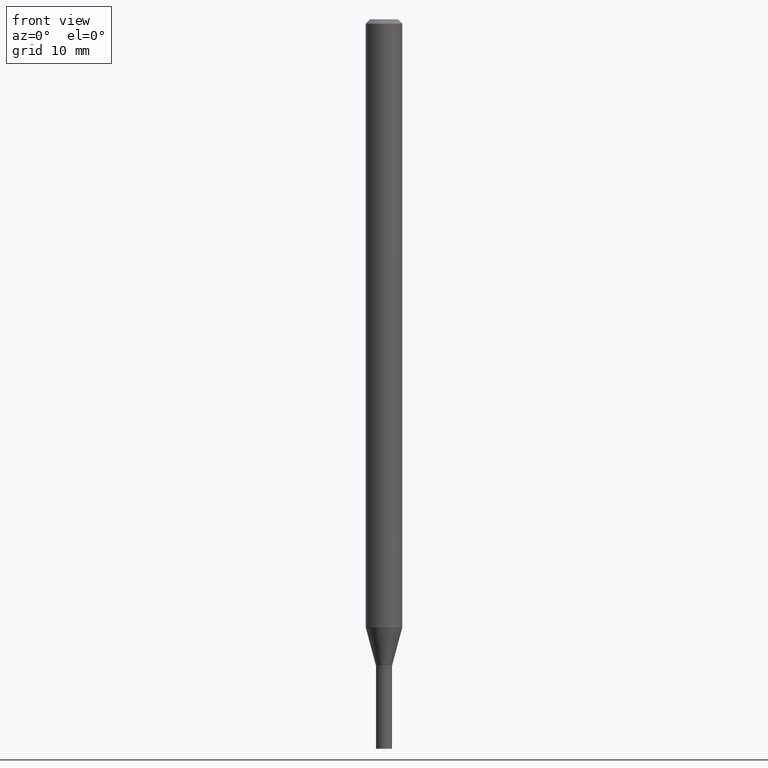
[diagram: clean part render]
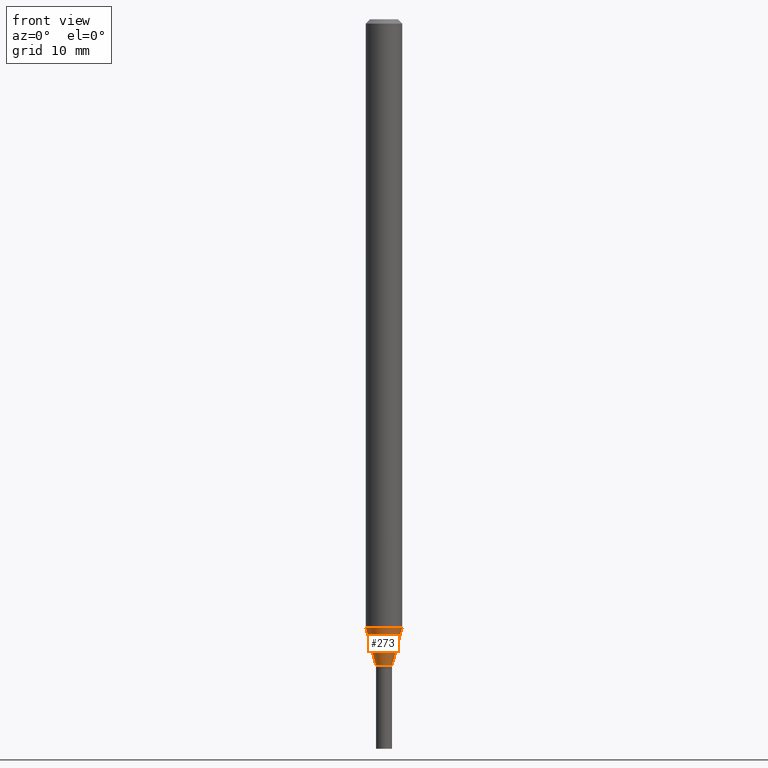
[diagram: same view with one face highlighted and labeled with its STEP entity id]
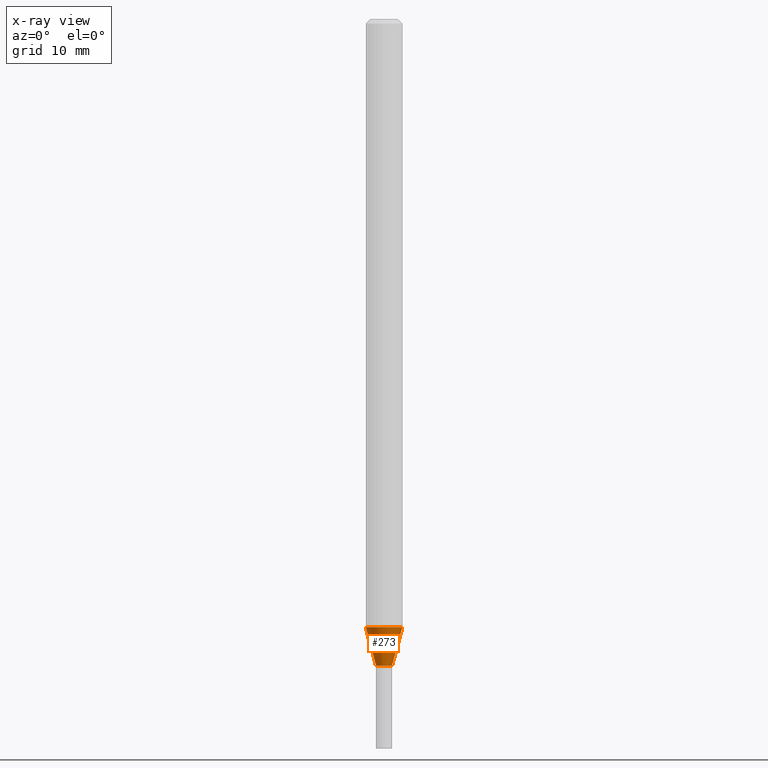
[diagram: x-ray of the same camera — body ghosted, the highlighted face saturated]
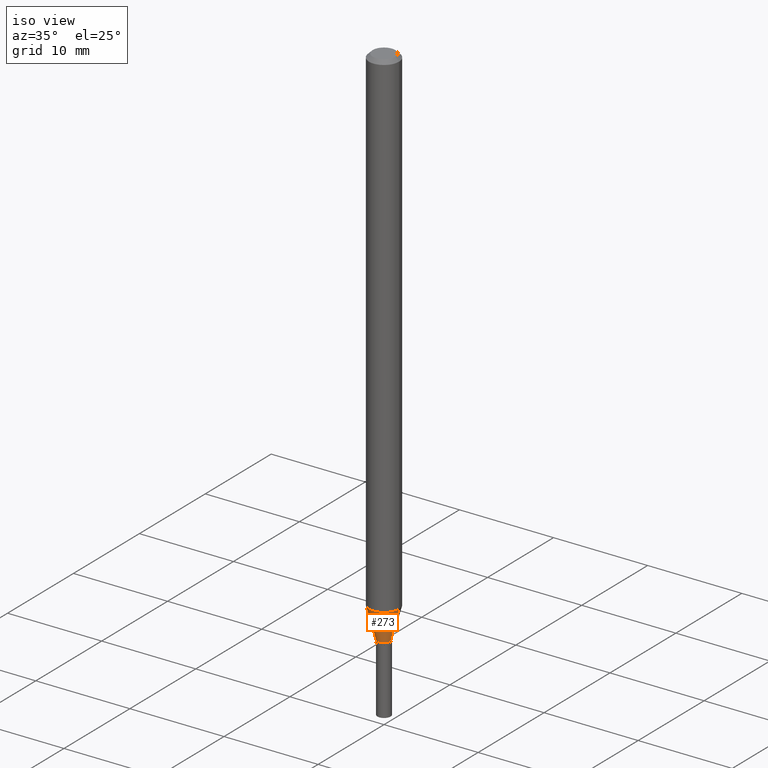
[diagram: same view with one face highlighted and labeled with its STEP entity id]
A machine part, front view. The second image highlights one B-rep face of the part: STEP entity #273.
The next image is the same camera in x-ray: the body ghosted, the highlighted face saturated — about 0% of this face is hidden behind the body in this view.
A second angle (iso view) of the same face is appended — the face is thin or edge-on in the first view.
In plain terms, the highlighted conical surface has half-angle 15 deg.
Its self-contained STEP definition (entity closure, byte-faithful):
#4 = EDGE_LOOP ( 'NONE', ( #402, #162, #17, #22 ) ) ;
#17 = ORIENTED_EDGE ( 'NONE', *, *, #442, .T. ) ;
#22 = ORIENTED_EDGE ( 'NONE', *, *, #213, .F. ) ;
#40 = VERTEX_POINT ( 'NONE', #301 ) ;
#55 = CONICAL_SURFACE ( 'NONE', #309, 0.02750000000000019790, 0.2617993877991500740 ) ;
#68 = VERTEX_POINT ( 'NONE', #258 ) ;
#78 = VECTOR ( 'NONE', #235, 39.37007874015747433 ) ;
#82 = DIRECTION ( 'NONE',  ( -0.2588190451025213501, 5.211531920934551042E-15, 0.9659258262890682012 ) ) ;
#95 = CARTESIAN_POINT ( 'NONE',  ( 5.416713405700078055E-29, -7.733631165537568465E-15, -2.215000000000000302 ) ) ;
#114 = DIRECTION ( 'NONE',  ( -2.445468806185136597E-29, 3.491481338843145583E-15, 1.000000000000000000 ) ) ;
#134 = CARTESIAN_POINT ( 'NONE',  ( 5.097281921544810220E-29, -7.277567664279129507E-15, -2.084378221735090797 ) ) ;
#136 = CIRCLE ( 'NONE', #241, 0.02750000000000019790 ) ;
#144 = FACE_OUTER_BOUND ( 'NONE', #4, .T. ) ;
#162 = ORIENTED_EDGE ( 'NONE', *, *, #359, .T. ) ;
#174 = CARTESIAN_POINT ( 'NONE',  ( 0.06250000000000000000, -7.714002831634521177E-15, -2.084378221735090797 ) ) ;
#202 = AXIS2_PLACEMENT_3D ( 'NONE', #134, #391, #211 ) ;
#211 = DIRECTION ( 'NONE',  ( 1.000000000000000000, -6.982962677686262766E-15, 0.000000000000000000 ) ) ;
#213 = EDGE_CURVE ( 'NONE', #40, #223, #251, .T. ) ;
#223 = VERTEX_POINT ( 'NONE', #174 ) ;
#235 = DIRECTION ( 'NONE',  ( 0.2588190451025213501, 1.565188264969621968E-15, 0.9659258262890682012 ) ) ;
#241 = AXIS2_PLACEMENT_3D ( 'NONE', #95, #457, #291 ) ;
#251 = CIRCLE ( 'NONE', #202, 0.06250000000000000000 ) ;
#258 = CARTESIAN_POINT ( 'NONE',  ( -0.02750000000000019790, -7.185855183816302830E-15, -2.215000000000000302 ) ) ;
#273 = ADVANCED_FACE ( 'NONE', ( #144 ), #55, .T. ) ;
#291 = DIRECTION ( 'NONE',  ( 1.000000000000000000, -6.982962677686265133E-15, 0.000000000000000000 ) ) ;
#301 = CARTESIAN_POINT ( 'NONE',  ( -0.06250000000000000000, -6.833478454429066891E-15, -2.084378221735090797 ) ) ;
#304 = CARTESIAN_POINT ( 'NONE',  ( 0.02750000000000019790, -7.925662639173941747E-15, -2.215000000000000302 ) ) ;
#309 = AXIS2_PLACEMENT_3D ( 'NONE', #440, #114, #408 ) ;
#328 = LINE ( 'NONE', #401, #348 ) ;
#329 = VERTEX_POINT ( 'NONE', #304 ) ;
#341 = LINE ( 'NONE', #453, #78 ) ;
#348 = VECTOR ( 'NONE', #82, 39.37007874015747433 ) ;
#359 = EDGE_CURVE ( 'NONE', #68, #329, #136, .T. ) ;
#380 = EDGE_CURVE ( 'NONE', #68, #40, #328, .T. ) ;
#391 = DIRECTION ( 'NONE',  ( -2.445468806185136597E-29, 3.491481338843145583E-15, 1.000000000000000000 ) ) ;
#401 = CARTESIAN_POINT ( 'NONE',  ( -0.02750000000000019790, -7.538231913203540346E-15, -2.215000000000000302 ) ) ;
#402 = ORIENTED_EDGE ( 'NONE', *, *, #380, .F. ) ;
#408 = DIRECTION ( 'NONE',  ( 1.000000000000000000, -6.982962677686265133E-15, 0.000000000000000000 ) ) ;
#440 = CARTESIAN_POINT ( 'NONE',  ( 5.416713405700078055E-29, -7.733631165537568465E-15, -2.215000000000000302 ) ) ;
#442 = EDGE_CURVE ( 'NONE', #329, #223, #341, .T. ) ;
#453 = CARTESIAN_POINT ( 'NONE',  ( 0.02750000000000019790, -7.925662639173941747E-15, -2.215000000000000302 ) ) ;
#457 = DIRECTION ( 'NONE',  ( -2.445468806185136597E-29, 3.491481338843145583E-15, 1.000000000000000000 ) ) ;